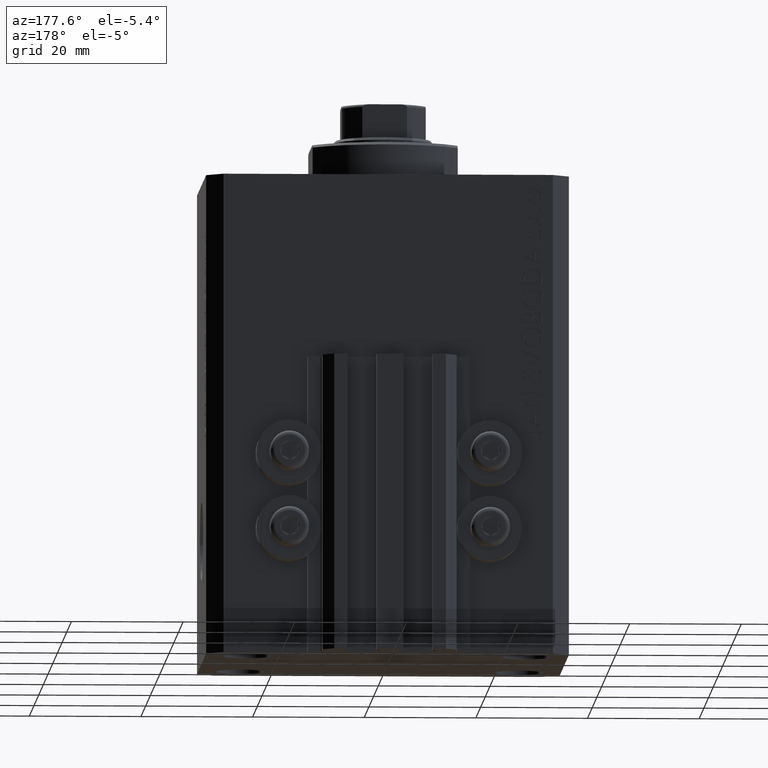
[diagram: clean part render]
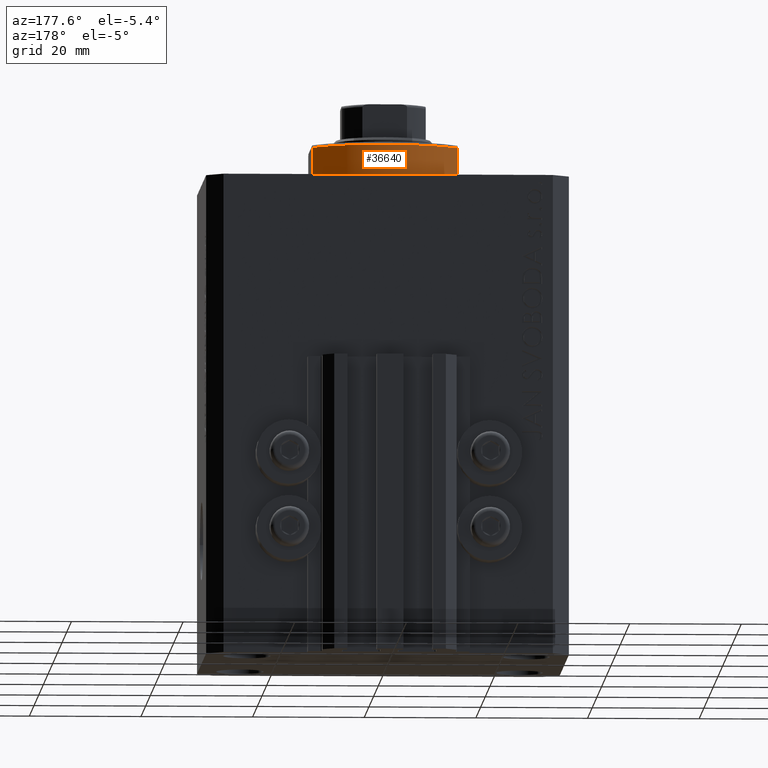
[diagram: same view with one face highlighted and labeled with its STEP entity id]
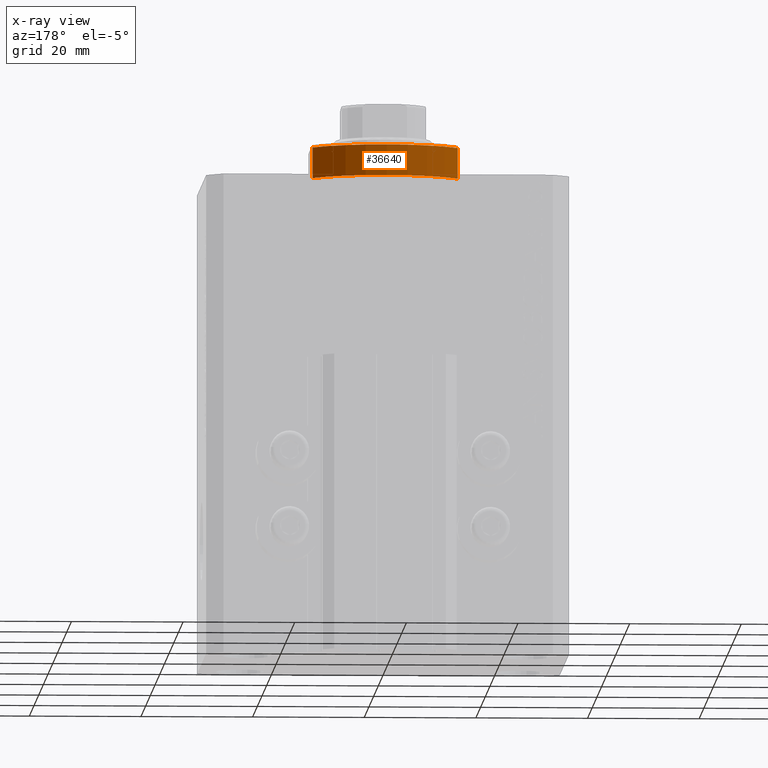
[diagram: x-ray of the same camera — body ghosted, the highlighted face saturated]
A machine part, auxiliary view. The second image highlights one B-rep face of the part: STEP entity #36640.
The next image is the same camera in x-ray: the body ghosted, the highlighted face saturated — about 0% of this face is hidden behind the body in this view.
In plain terms, the highlighted cylindrical surface (partial cylindrical patch) has radius 16 mm, axis along (0, 0, -1).
Its self-contained STEP definition (entity closure, byte-faithful):
#998 = VERTEX_POINT ( 'NONE', #22445 ) ;
#1831 = DIRECTION ( 'NONE',  ( 1.000000000000000000, 0.000000000000000000, 0.000000000000000000 ) ) ;
#2550 = CARTESIAN_POINT ( 'NONE',  ( 0.000000000000000000, 0.000000000000000000, -6.500000000000000000 ) ) ;
#2766 = ORIENTED_EDGE ( 'NONE', *, *, #36424, .T. ) ;
#3139 = DIRECTION ( 'NONE',  ( -0.000000000000000000, -0.000000000000000000, 1.000000000000000000 ) ) ;
#9315 = CARTESIAN_POINT ( 'NONE',  ( -13.00000000000000000, 9.327379053088815652, -0.4999999999999995559 ) ) ;
#12814 = EDGE_CURVE ( 'NONE', #46692, #17433, #18399, .T. ) ;
#13863 = CARTESIAN_POINT ( 'NONE',  ( 0.000000000000000000, 0.000000000000000000, -6.000000000000023981 ) ) ;
#13896 = DIRECTION ( 'NONE',  ( 1.000000000000000000, -8.881784197001252323E-16, 0.000000000000000000 ) ) ;
#15144 = AXIS2_PLACEMENT_3D ( 'NONE', #2550, #17093, #1831 ) ;
#15202 = AXIS2_PLACEMENT_3D ( 'NONE', #43736, #36342, #13896 ) ;
#15737 = DIRECTION ( 'NONE',  ( -0.000000000000000000, -0.000000000000000000, 1.000000000000000000 ) ) ;
#16355 = ORIENTED_EDGE ( 'NONE', *, *, #42251, .T. ) ;
#16364 = VECTOR ( 'NONE', #15737, 1000.000000000000000 ) ;
#17093 = DIRECTION ( 'NONE',  ( -0.000000000000000000, -0.000000000000000000, 1.000000000000000000 ) ) ;
#17195 = DIRECTION ( 'NONE',  ( 0.000000000000000000, 0.000000000000000000, 1.000000000000000000 ) ) ;
#17433 = VERTEX_POINT ( 'NONE', #41366 ) ;
#17687 = LINE ( 'NONE', #35857, #33456 ) ;
#18399 = LINE ( 'NONE', #26047, #16364 ) ;
#18401 = ORIENTED_EDGE ( 'NONE', *, *, #38102, .T. ) ;
#18609 = EDGE_LOOP ( 'NONE', ( #43457, #16355, #2766, #18401 ) ) ;
#20634 = AXIS2_PLACEMENT_3D ( 'NONE', #13863, #17195, #28443 ) ;
#20877 = VERTEX_POINT ( 'NONE', #9315 ) ;
#22445 = CARTESIAN_POINT ( 'NONE',  ( -13.00000000000000000, 9.327379053088916905, -6.000000000000014211 ) ) ;
#24511 = CYLINDRICAL_SURFACE ( 'NONE', #15144, 16.00000000000000000 ) ;
#26047 = CARTESIAN_POINT ( 'NONE',  ( 13.00000000000000000, 9.327379053088813876, -6.500000000000000000 ) ) ;
#28443 = DIRECTION ( 'NONE',  ( -1.000000000000000000, 0.000000000000000000, 0.000000000000000000 ) ) ;
#30538 = CARTESIAN_POINT ( 'NONE',  ( 13.00000000000000000, 9.327379053088916905, -6.000000000000014211 ) ) ;
#31304 = CIRCLE ( 'NONE', #20634, 16.00000000000000000 ) ;
#31992 = CIRCLE ( 'NONE', #15202, 16.00000000000000000 ) ;
#33456 = VECTOR ( 'NONE', #3139, 1000.000000000000000 ) ;
#35265 = FACE_OUTER_BOUND ( 'NONE', #18609, .T. ) ;
#35857 = CARTESIAN_POINT ( 'NONE',  ( -13.00000000000000000, 9.327379053088813876, -6.500000000000000000 ) ) ;
#36342 = DIRECTION ( 'NONE',  ( -0.000000000000000000, -0.000000000000000000, -1.000000000000000000 ) ) ;
#36424 = EDGE_CURVE ( 'NONE', #998, #20877, #17687, .T. ) ;
#36640 = ADVANCED_FACE ( 'NONE', ( #35265 ), #24511, .T. ) ;
#38102 = EDGE_CURVE ( 'NONE', #20877, #17433, #31992, .T. ) ;
#41366 = CARTESIAN_POINT ( 'NONE',  ( 13.00000000000000000, 9.327379053088815652, -0.4999999999999995559 ) ) ;
#42251 = EDGE_CURVE ( 'NONE', #46692, #998, #31304, .T. ) ;
#43457 = ORIENTED_EDGE ( 'NONE', *, *, #12814, .F. ) ;
#43736 = CARTESIAN_POINT ( 'NONE',  ( 0.000000000000000000, 0.000000000000000000, -0.4999999999999995559 ) ) ;
#46692 = VERTEX_POINT ( 'NONE', #30538 ) ;